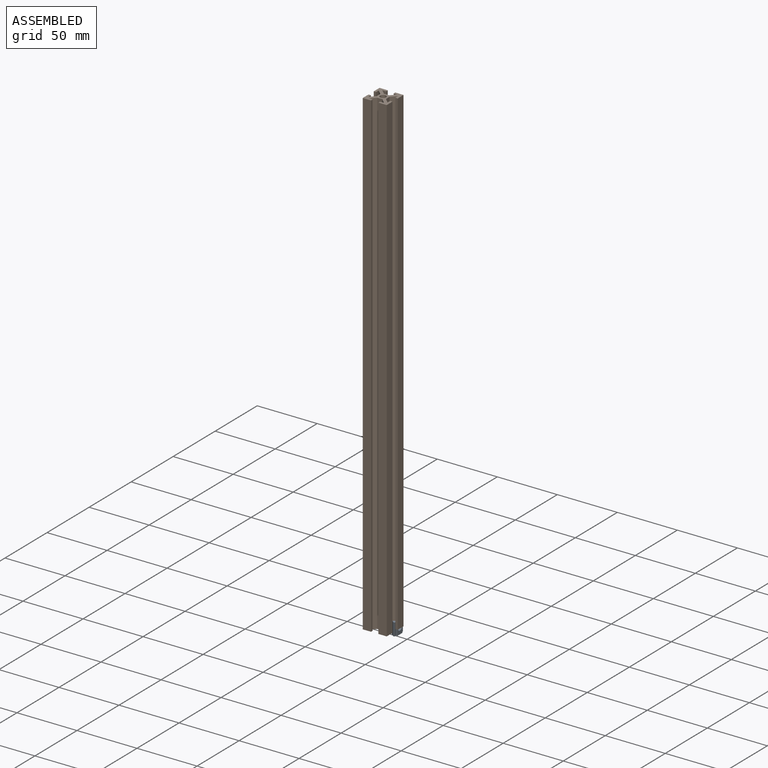
[diagram: assembled view]
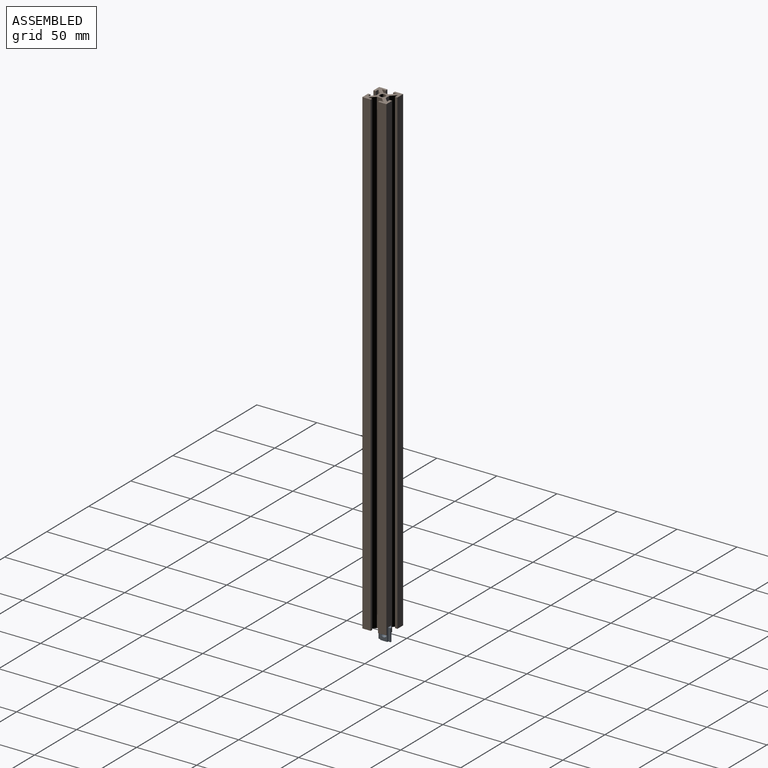
[diagram: assembled view, second angle]
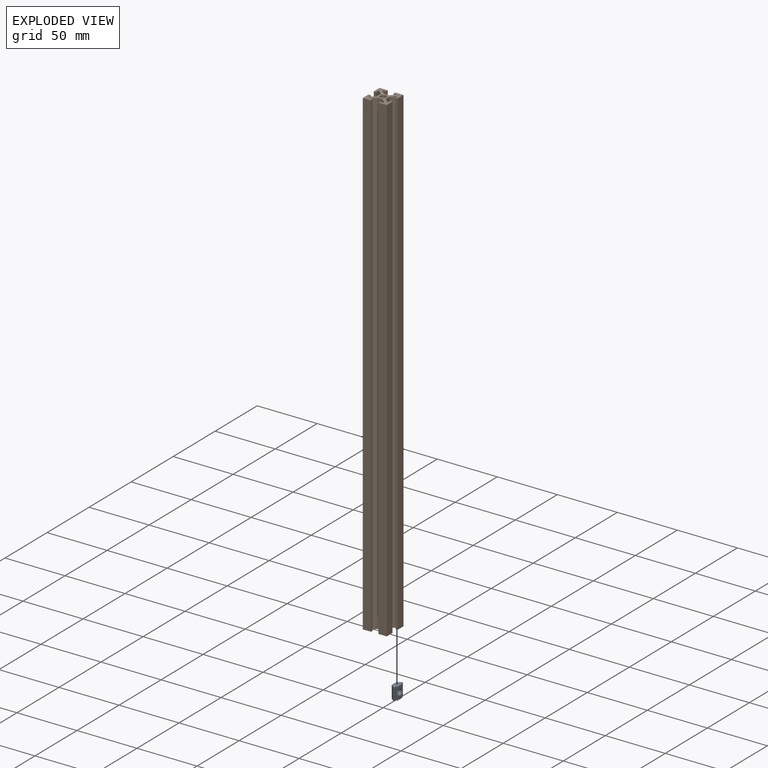
[diagram: exploded view]
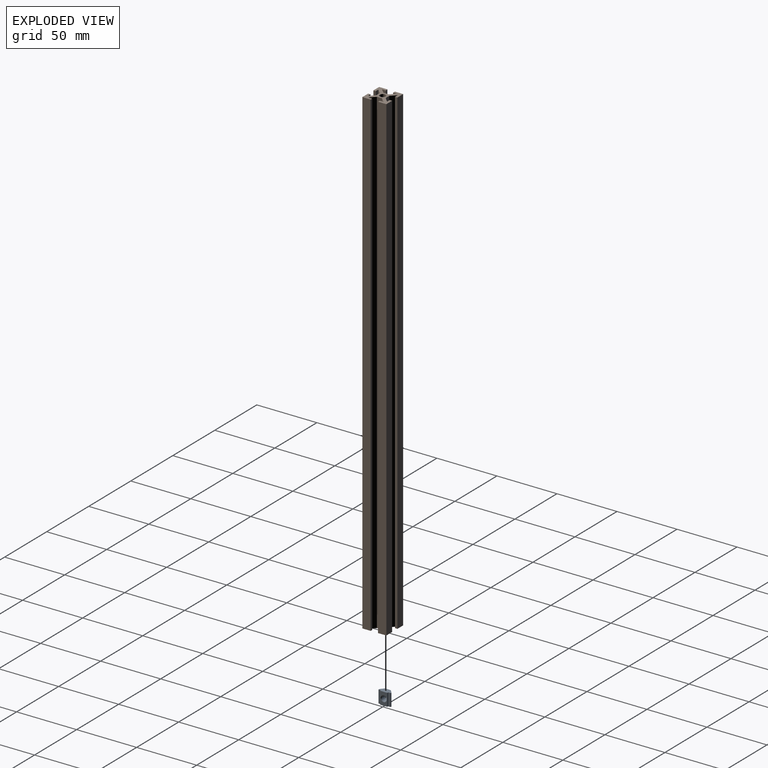
[diagram: exploded view, second angle]
FCSTD DOCUMENT  (FreeCAD 1.0R39109 (Git))
Label: top_edge_case_asm
License: All rights reserved
LicenseURL: https://en.wikipedia.org/wiki/All_rights_reserved
objects: App::Link×2, App::FeaturePython×2, Assembly::JointGroup×1, Assembly::AssemblyObject×1
EXTERNAL_REF file=../parts/T-Slot_20_length.FCStd obj=Body
EXTERNAL_REF file=../parts/T-nut_20.FCStd obj=Part__Feature

FEATURE [App::Link] Tslot20_len
  LinkedObject = -> <external ../parts/T-Slot_20_length.FCStd>#Body
FEATURE [App::FeaturePython] GroundedJoint  # Assembly grounded joint (typed FeaturePython)
  ObjectToGround = -> Tslot20_len
FEATURE [App::Link] T_Nut_2020_M5  label="T-Nut_2020_M5"
  LinkPlacement = pos=(8,7.1,0) rot=(0.57735,-0.57735,0.57735;4.18879rad)
  LinkedObject = -> <external ../parts/T-nut_20.FCStd>#Part__Feature
  Placement = pos=(8,7.1,0) rot=(0.57735,-0.57735,0.57735;4.18879rad)
FEATURE [App::FeaturePython] Joint  label="Fixed"  # Assembly joint (typed FeaturePython)
  Activated = true
  AngleMax = 0
  AngleMin = 0
  Detach1 = false
  Detach2 = false
  Distance = 0
  Distance2 = 0
  EnableAngleMax = false
  EnableAngleMin = false
  EnableLengthMax = false
  EnableLengthMin = false
  JointType = 0 (Fixed)
  LengthMax = 0
  LengthMin = 0
  Offset1 = pos=(-7.1,-19,-1) rot=(0,0,1;0rad)
  Offset2 = pos=(0,0,-1) rot=(0,0,1;0rad)
FEATURE [Assembly::JointGroup] Joints
  Group = -> [GroundedJoint,Joint]
FEATURE [Assembly::AssemblyObject] Assembly
  Group = -> [Joints,Tslot20_len,GroundedJoint,T_Nut_2020_M5,Joint]
  Origin = -> Origin
  Type = Assembly

RESOLVED EXTERNAL PARTS (link-assembly join: the EXTERNAL_REF files above that resolve inside this repo's crawl, each included once):
---- part ../parts/T-Slot_20_length.FCStd = doc fcstd_5f879e7afb14 ----
FCSTD DOCUMENT  (FreeCAD 1.0R39109 (Git))
Label: T-Slot_20_length
License: All rights reserved
LicenseURL: http://en.wikipedia.org/wiki/All_rights_reserved
objects: Sketcher::SketchObject×3, PartDesign::Pocket×2, TechDraw::DrawProjGroupItem×2, TechDraw::DrawViewDimension×2, PartDesign::Pad×1, PartDesign::Body×1, TechDraw::DrawSVGTemplate×1, TechDraw::DrawProjGroup×1, TechDraw::DrawPage×1
note: 19 computed .brp shape members not serialized (recipe doc carries the construction recipe); baked Part::Feature solids carry a one-line shape summary decoded from their .brp

FEATURE [Sketcher::SketchObject] Sketch
  ArcFitTolerance = 0
  AttachmentSupport = -> [XY_Plane]
  FullyConstrained = true
  MakeInternals = false
  MapMode = 5
  sketch-geometry (4):
    g0: LineSegment StartX=-10 StartY=10 StartZ=0 EndX=10 EndY=10 EndZ=0
    g1: LineSegment StartX=10 StartY=10 StartZ=0 EndX=10 EndY=-10 EndZ=0
    g2: LineSegment StartX=10 StartY=-10 StartZ=0 EndX=-10 EndY=-10 EndZ=0
    g3: LineSegment StartX=-10 StartY=-10 StartZ=0 EndX=-10 EndY=10 EndZ=0
  constraints (10):
    c: Coincident(g0,g1)
    c: Coincident(g1,g2)
    c: Coincident(g2,g3)
    c: Coincident(g3,g0)
    c: Horizontal(g0)
    c: Vertical(g1)
    c: Symmetric(g2,g1,g-2)
    c: Symmetric(g0,g2,g-1)
    c: Equal(g3,g2)
    c: Distance(g0) = 20
FEATURE [PartDesign::Pad] Pad  label="Change Length Here!"
  AllowMultiFace = false
  Direction = (0,0,1)
  Length = 400
  Length2 = 100
  Profile = -> Sketch
  ReferenceAxis = -> Sketch [N_Axis]
  Refine = true
  Suppressed = false
  Type = 0
FEATURE [Sketcher::SketchObject] Sketch001
  ArcFitTolerance = 0
  AttachmentSupport = -> [Pad]
  ExternalGeometry = -> [Pad]
  FullyConstrained = false
  MakeInternals = false
  MapMode = 5
  Placement = pos=(0,0,400) rot=(0,0,1;0rad)
  sketch-geometry (23):
    g0: LineSegment StartX=-3.1 StartY=10 StartZ=0 EndX=3.1 EndY=10 EndZ=0
    g1: LineSegment StartX=3.1 StartY=10 StartZ=0 EndX=3.1 EndY=8 EndZ=0
    g2: LineSegment [constr] StartX=3.1 StartY=8 StartZ=0 EndX=-3.1 EndY=8 EndZ=0
    g3: LineSegment StartX=-3.1 StartY=8 StartZ=0 EndX=-3.1 EndY=10 EndZ=0
    g4: LineSegment StartX=-3.1 StartY=8 StartZ=0 EndX=-6.23223 EndY=8 EndZ=0
    g5: LineSegment StartX=-6.23223 StartY=8 StartZ=0 EndX=-2.13223 EndY=3.9 EndZ=0
    g6: LineSegment StartX=-2.13223 StartY=3.9 StartZ=0 EndX=2.13223 EndY=3.9 EndZ=0
    g7: LineSegment StartX=2.13223 StartY=3.9 StartZ=0 EndX=6.23223 EndY=8 EndZ=0
    g8: LineSegment StartX=6.23223 StartY=8 StartZ=0 EndX=3.1 EndY=8 EndZ=0
    g9: LineSegment [constr] StartX=-3.9 StartY=3.9 StartZ=0 EndX=3.9 EndY=3.9 EndZ=0
    g10: LineSegment [constr] StartX=3.9 StartY=3.9 StartZ=0 EndX=3.9 EndY=-3.9 EndZ=0
    g11: LineSegment [constr] StartX=3.9 StartY=-3.9 StartZ=0 EndX=-3.9 EndY=-3.9 EndZ=0
    g12: LineSegment [constr] StartX=-3.9 StartY=-3.9 StartZ=0 EndX=-3.9 EndY=3.9 EndZ=0
    g13: Circle CenterX=0 CenterY=0 CenterZ=0 NormalX=0 NormalY=0 NormalZ=1 AngleXU=0 Radius=2.5
    g14: LineSegment [constr] StartX=3.9 StartY=3.9 StartZ=0 EndX=3.01612 EndY=4.78388 EndZ=0
    g15: LineSegment StartX=-3.1 StartY=-8 StartZ=0 EndX=-6.23223 EndY=-8 EndZ=0
    g16: LineSegment StartX=6.23223 StartY=-8 StartZ=0 EndX=3.1 EndY=-8 EndZ=0
    g17: LineSegment StartX=3.1 StartY=-10 StartZ=0 EndX=3.1 EndY=-8 EndZ=0
    g18: LineSegment StartX=-3.1 StartY=-10 StartZ=0 EndX=3.1 EndY=-10 EndZ=0
    g19: LineSegment StartX=-3.1 StartY=-8 StartZ=0 EndX=-3.1 EndY=-10 EndZ=0
    g20: LineSegment StartX=-6.23223 StartY=-8 StartZ=0 EndX=-2.13223 EndY=-3.9 EndZ=0
    g21: LineSegment StartX=-2.13223 StartY=-3.9 StartZ=0 EndX=2.13223 EndY=-3.9 EndZ=0
    g22: LineSegment StartX=2.13223 StartY=-3.9 StartZ=0 EndX=6.23223 EndY=-8 EndZ=0
  constraints (55):
    c: Coincident(g0,g1)
    c: Coincident(g1,g2)
    c: Coincident(g2,g3)
    c: Coincident(g3,g0)
    c: Horizontal(g2)
    c: Vertical(g1)
    c: Vertical(g3)
    c: PointOnObject(g0,g-3)
    c: Symmetric(g0,g0,g-2)
    c: Distance(g0) = 6.2
    c: Distance(g3) = 2
    c: Coincident(g3,g4)
    c: Horizontal(g4)
    c: Coincident(g4,g5)
    c: Coincident(g5,g6)
    c: Coincident(g6,g7)
    c: Coincident(g7,g8)
    c: Coincident(g8,g1)
    c: Horizontal(g8)
    c: Symmetric(g5,g6,g-2)
    c: Equal(g4,g8)
    c: Coincident(g9,g10)
    c: Coincident(g10,g11)
    c: Coincident(g11,g12)
    c: Coincident(g12,g9)
    c: Horizontal(g9)
    c: Vertical(g12)
    c: Equal(g9,g12)
    c: Symmetric(g11,g10,g-2)
    c: Symmetric(g9,g10,g-1)
    c: Distance(g9) = 7.8
    c: Coincident(g13,g-1)
    c: Radius(g13) = 2.5
    c: DistanceY(g6,g0) = 6.1
    c: Coincident(g14,g9)
    c: PointOnObject(g14,g7)
    c: Perpendicular(g7,g14)
    c: Distance(g14) = 1.25
    c: Angle(g6,g5) = 2.35619
    c: Coincident(g18,g17)
    c: Coincident(g19,g18)
    c: Vertical(g17)
    c: Vertical(g19)
    c: Distance(g18) = 6.2
    c: Distance(g19) = 2
    c: Coincident(g19,g15)
    c: Horizontal(g15)
    c: Coincident(g15,g20)
    c: Coincident(g20,g21)
    c: Coincident(g21,g22)
    c: Coincident(g22,g16)
    c: Coincident(g16,g17)
    c: Horizontal(g16)
    c: Equal(g15,g16)
    c: Angle(g21,g20) = -2.35619
FEATURE [PartDesign::Pocket] Pocket  label="Top & Bottom Slots"
  AllowMultiFace = false
  BaseFeature = -> Pad
  Direction = (0,0,-1)
  Length = 5
  Length2 = 100
  Profile = -> Sketch001
  Refine = true
  Suppressed = false
  Type = 1
FEATURE [Sketcher::SketchObject] Sketch002
  ArcFitTolerance = 0
  AttachmentSupport = -> [Pocket]
  ExternalGeometry = -> [Pocket]
  FullyConstrained = false
  MakeInternals = false
  MapMode = 5
  Placement = pos=(0,0,0) rot=(1,0,0;3.14159rad)
  sketch-geometry (19):
    g0: LineSegment StartX=-10 StartY=-3.1 StartZ=0 EndX=-8 EndY=-3.1 EndZ=0
    g1: LineSegment [constr] StartX=-8 StartY=-3.1 StartZ=0 EndX=-8 EndY=3.1 EndZ=0
    g2: LineSegment StartX=-8 StartY=3.1 StartZ=0 EndX=-10 EndY=3.1 EndZ=0
    g3: LineSegment StartX=-10 StartY=3.1 StartZ=0 EndX=-10 EndY=-3.1 EndZ=0
    g4: LineSegment StartX=-8 StartY=-3.1 StartZ=0 EndX=-8 EndY=-6.23223 EndZ=0
    g5: LineSegment StartX=-8 StartY=-6.23223 StartZ=0 EndX=-3.9 EndY=-2.13223 EndZ=0
    g6: LineSegment StartX=-3.9 StartY=-2.13223 StartZ=0 EndX=-3.9 EndY=2.13223 EndZ=0
    g7: LineSegment StartX=-3.9 StartY=2.13223 StartZ=0 EndX=-8 EndY=6.23223 EndZ=0
    g8: LineSegment StartX=-8 StartY=6.23223 StartZ=0 EndX=-8 EndY=3.1 EndZ=0
    g9: LineSegment [constr] StartX=-2.13223 StartY=3.9 StartZ=0 EndX=-3.9 EndY=2.13223 EndZ=0
    g10: LineSegment [constr] StartX=2.13223 StartY=3.9 StartZ=0 EndX=3.9 EndY=2.13223 EndZ=0
    g11: LineSegment StartX=3.9 StartY=-2.13223 StartZ=0 EndX=3.9 EndY=2.13223 EndZ=0
    g12: LineSegment StartX=8 StartY=-6.23223 StartZ=0 EndX=3.9 EndY=-2.13223 EndZ=0
    g13: LineSegment StartX=3.9 StartY=2.13223 StartZ=0 EndX=8 EndY=6.23223 EndZ=0
    g14: LineSegment StartX=8 StartY=6.23223 StartZ=0 EndX=8 EndY=3.1 EndZ=0
    g15: LineSegment StartX=8 StartY=3.1 StartZ=0 EndX=10 EndY=3.1 EndZ=0
    g16: LineSegment StartX=10 StartY=3.1 StartZ=0 EndX=10 EndY=-3.1 EndZ=0
    g17: LineSegment StartX=10 StartY=-3.1 StartZ=0 EndX=8 EndY=-3.1 EndZ=0
    g18: LineSegment StartX=8 StartY=-3.1 StartZ=0 EndX=8 EndY=-6.23223 EndZ=0
  constraints (43):
    c: Coincident(g0,g1)
    c: Coincident(g1,g2)
    c: Coincident(g2,g3)
    c: Coincident(g3,g0)
    c: Horizontal(g0)
    c: Horizontal(g2)
    c: Vertical(g1)
    c: PointOnObject(g0,g-3)
    c: Symmetric(g2,g0,g-1)
    c: Distance(g3) = 6.2
    c: Distance(g0) = 2
    c: Coincident(g0,g4)
    c: Vertical(g4)
    c: Coincident(g4,g5)
    c: Coincident(g5,g6)
    c: Coincident(g6,g7)
    c: Coincident(g7,g8)
    c: Coincident(g8,g2)
    c: Vertical(g8)
    c: Equal(g4,g8)
    c: Symmetric(g6,g5,g-1)
    c: DistanceX(g2,g6) = 6.1
    c: Angle(g6,g5) = 2.35619
    c: Coincident(g9,g-4)
    c: Perpendicular(g-4,g9)
    c: Coincident(g6,g9)
    c: Coincident(g15,g16)
    c: Coincident(g16,g17)
    c: Horizontal(g17)
    c: Horizontal(g15)
    c: Distance(g16) = 6.2
    c: Distance(g17) = 2
    c: Coincident(g17,g18)
    c: Vertical(g18)
    c: Coincident(g18,g12)
    c: Coincident(g12,g11)
    c: Coincident(g11,g13)
    c: Coincident(g13,g14)
    c: Coincident(g14,g15)
    c: Vertical(g14)
    c: Equal(g18,g14)
    c: Angle(g11,g12) = -2.35619
    c: Coincident(g11,g10)
FEATURE [PartDesign::Pocket] Pocket001  label="R&L Slots"
  AllowMultiFace = false
  BaseFeature = -> Pocket
  Direction = (0,0,1)
  Length = 5
  Length2 = 100
  Profile = -> Sketch002
  Refine = true
  Suppressed = false
  Type = 1
FEATURE [PartDesign::Body] Body  label="Tslot20_len"
  AllowCompound = false
  Group = -> [Sketch,Pad,Sketch001,Pocket,Sketch002,Pocket001]
  Origin = -> Origin
  Tip = -> Pocket001
FEATURE [TechDraw::DrawSVGTemplate] Template
  EditableTexts = approval_person=B. Hecate; creator=Djordje Vujic; date_of_issue=1/21/2025; document_type=Assembly Drawing; general_tolerances=ISO 2768-m; identification_number=DN; language_code=EN; part_material=Stainless steel Mat.No. 1.4301; revision_index=AAA; sheet_number=1 / 5; sheet_scale=1 : 2; title=T-Slot_20_length
  Height = 297
  Orientation = 0
  Template = D:/Program Files/FreeCAD 1.0/data/Mod/TechDraw/Templates/A4_Portrait_ISO5457_minimal.svg
  Width = 210
FEATURE [TechDraw::DrawProjGroupItem] ProjItem  label="Front"
  CoarseView = false
  Direction = (0,-1,0)
  Focus = 100
  HardHidden = false
  IsoCount = 0
  IsoHidden = false
  IsoVisible = false
  LockPosition = true
  Perspective = false
  Rotation = 0
  RotationVector = (1,0,0)
  Scale = 0.5
  ScaleType = 0
  ScrubCount = 1
  SeamHidden = false
  SeamVisible = false
  SmoothHidden = false
  SmoothVisible = true
  Source = -> [Body]
  Type = 0
  X = 0
  XDirection = (1,0,0)
  Y = 0
FEATURE [TechDraw::DrawProjGroupItem] ProjItem001  label="Bottom"
  CoarseView = false
  Direction = (0,0,-1)
  Focus = 100
  HardHidden = false
  IsoCount = 0
  IsoHidden = false
  IsoVisible = false
  LockPosition = false
  Perspective = false
  Rotation = 0
  RotationVector = (1,0,0)
  Scale = 0.5
  ScaleType = 0
  ScrubCount = 1
  SeamHidden = false
  SeamVisible = false
  SmoothHidden = false
  SmoothVisible = true
  Source = -> [Body]
  Type = 5
  X = 0
  XDirection = (1,0,0)
  Y = 120
FEATURE [TechDraw::DrawProjGroup] ProjGroup
  Anchor = -> ProjItem
  AutoDistribute = true
  LockPosition = false
  ProjectionType = 0
  Rotation = 0
  Scale = 0.5
  ScaleType = 2
  Source = -> [Body]
  Views = -> [ProjItem,ProjItem001]
  X = 104.931
  Y = 160.059
  spacingX = 15
  spacingY = 15
FEATURE [TechDraw::DrawViewDimension] Dimension
  AngleOverride = false
  Arbitrary = false
  ArbitraryTolerances = false
  BoxCorners = (2) [(-5,-100,0),(5,100,0)]
  EqualTolerance = true
  ExtensionAngle = 0
  FormatSpec = %.2w
  FormatSpecOverTolerance = %+.2w
  FormatSpecUnderTolerance = %+.2w
  Inverted = false
  LineAngle = 0
  LockPosition = false
  MeasureType = 1
  OverTolerance = 0
  References2D = -> [ProjItem]
  Rotation = 0
  ScaleType = 0
  TheoreticalExact = false
  Type = 2
  UnderTolerance = 0
  X = 24.0453
  Y = -12.9531
FEATURE [TechDraw::DrawViewDimension] Dimension001
  AngleOverride = false
  Arbitrary = false
  ArbitraryTolerances = false
  BoxCorners = (2) [(-5,-5,0),(5,5,0)]
  EqualTolerance = true
  ExtensionAngle = 0
  FormatSpec = %.2w
  FormatSpecOverTolerance = %+.2w
  FormatSpecUnderTolerance = %+.2w
  Inverted = false
  LineAngle = 0
  LockPosition = false
  MeasureType = 1
  OverTolerance = 0
  References2D = -> [ProjItem001]
  Rotation = 0
  ScaleType = 0
  TheoreticalExact = false
  Type = 2
  UnderTolerance = 0
  X = 23.5343
  Y = -10.7172
FEATURE [TechDraw::DrawPage] Page
  KeepUpdated = true
  NextBalloonIndex = 1
  ProjectionType = 0
  Template = -> Template
  Views = -> [ProjGroup,Dimension,Dimension001]
